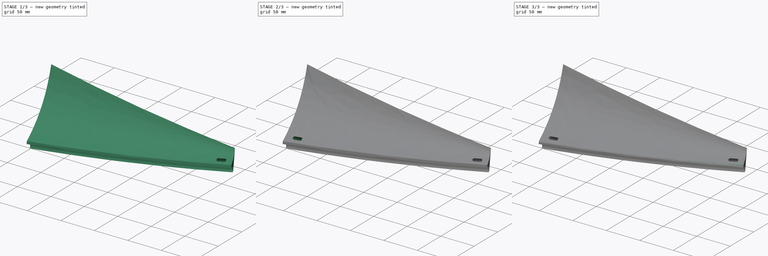
[diagram: build sequence overview — one tinted view per stage of 3, left to right]
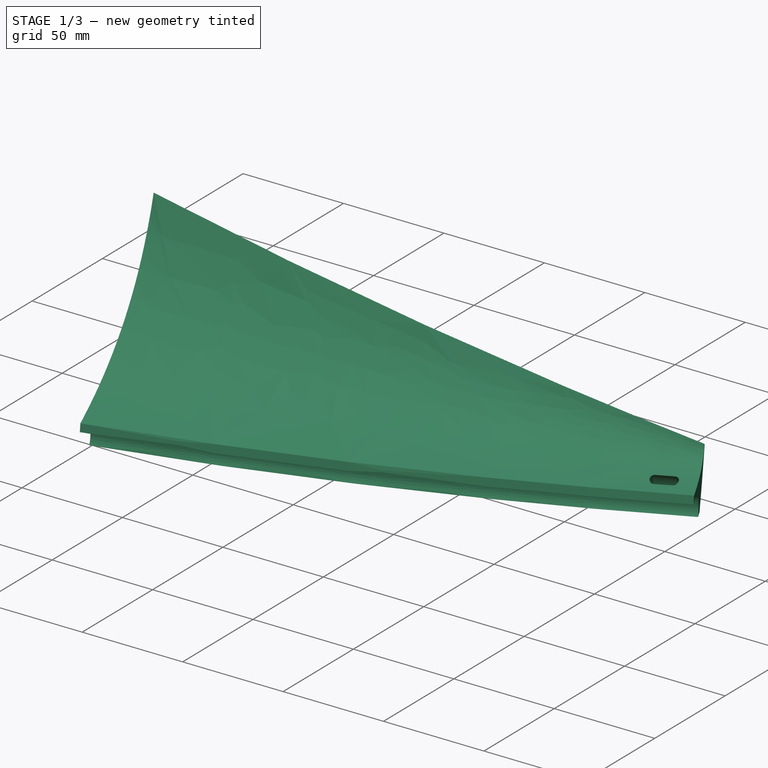
[diagram: stage 1 of 3 — iso view after this stage's code; geometry added in this stage tinted green]
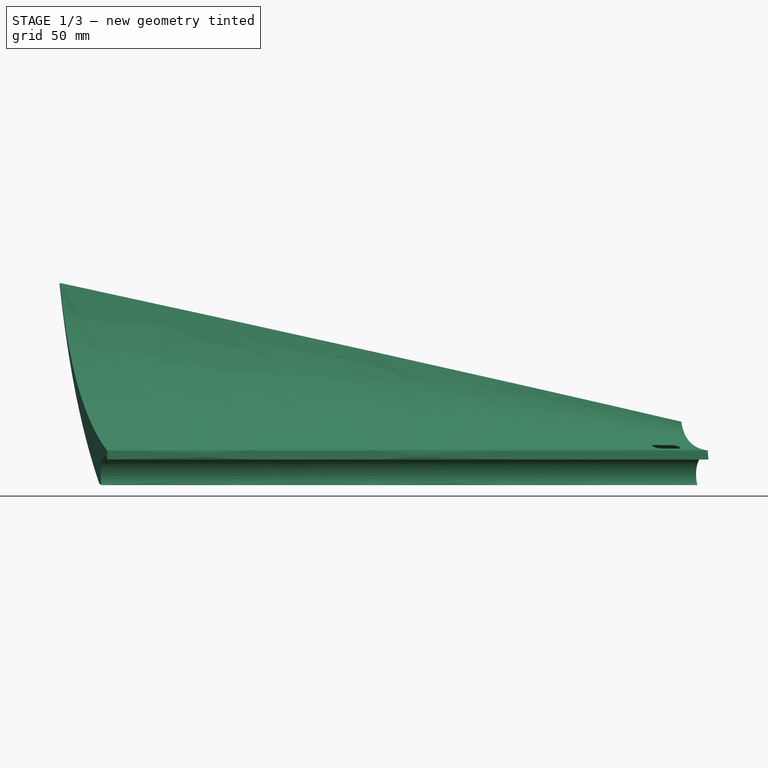
[diagram: stage 1 of 3 — front view after this stage's code; geometry added in this stage tinted green]
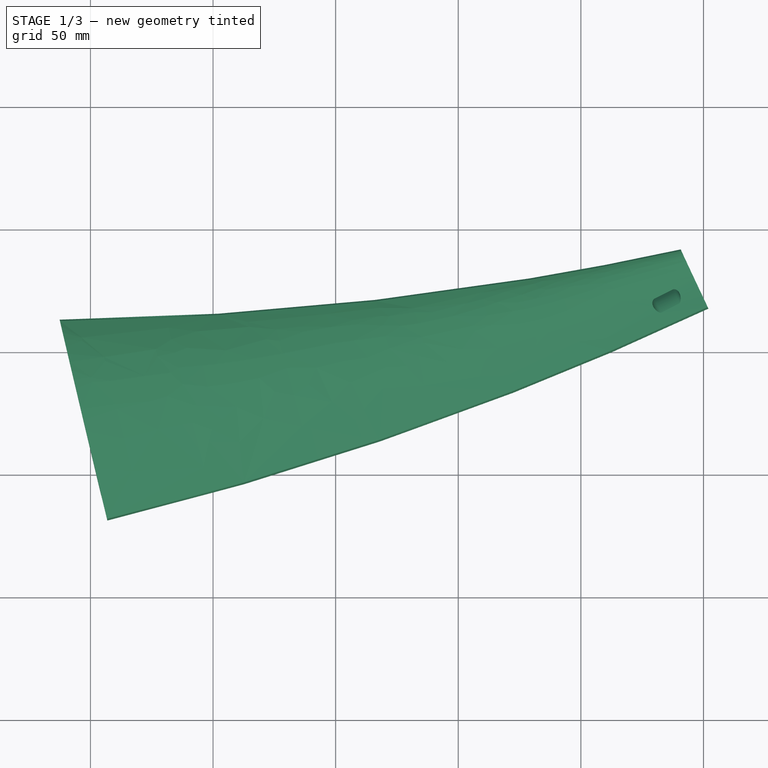
[diagram: stage 1 of 3 — top view after this stage's code; geometry added in this stage tinted green]
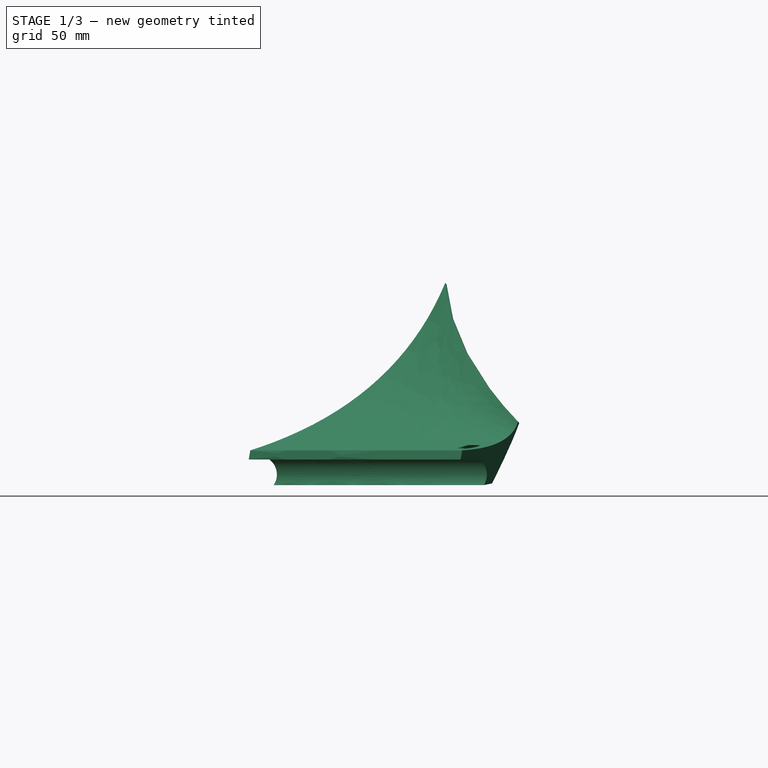
[diagram: stage 1 of 3 — right view after this stage's code; geometry added in this stage tinted green]
FCSTD DOCUMENT  (FreeCAD 0.22R38314 (Git))
Label: Radial _Airfoil_Lower
License: All rights reserved
LicenseURL: https://en.wikipedia.org/wiki/All_rights_reserved
objects: Sketcher::SketchObject×5, PartDesign::Plane×4, PartDesign::SubtractivePipe×2, PartDesign::Fillet×2, PartDesign::AdditivePipe×1, PartDesign::Body×1
note: 25 computed .brp shape members not serialized (recipe doc carries the construction recipe); baked Part::Feature solids carry a one-line shape summary decoded from their .brp

FEATURE [Sketcher::SketchObject] Sketch  label="Radial Guide"
  AttachmentSupport = -> [XY_Plane]
  FullyConstrained = true
  MapMode = 5
  sketch-geometry (6):
    g0: Circle CenterX=0 CenterY=0 CenterZ=0 NormalX=0 NormalY=0 NormalZ=1 AngleXU=0 Radius=8
    g1: Circle CenterX=616 CenterY=155 CenterZ=0 NormalX=0 NormalY=0 NormalZ=1 AngleXU=0 Radius=10
    g2: GeomPoint X=550.157 Y=121.576 Z=0
    g3: ArcOfCircle CenterX=8 CenterY=1269.64 CenterZ=0 NormalX=0 NormalY=0 NormalZ=1 AngleXU=0 Radius=1269.64 StartAngle=4.71239 EndAngle=4.94923
    g4: ArcOfCircle CenterX=8 CenterY=1269.64 CenterZ=0 NormalX=0 NormalY=0 NormalZ=1 AngleXU=0 Radius=1269.64 StartAngle=4.94923 EndAngle=5.15358
    g5: ArcOfCircle CenterX=8 CenterY=1269.64 CenterZ=0 NormalX=0 NormalY=0 NormalZ=1 AngleXU=0 Radius=1269.64 StartAngle=5.15358 EndAngle=5.20387
  constraints (17):
    c: Diameter(g0) = 16
    c: Coincident(g0,g-1)
    c: Diameter(g1) = 20
    c: DistanceX(g0,g1) = 616
    c: DistanceY(g0,g1) = 155
    c: PointOnObject(g3,g0)
    c: PointOnObject(g5,g1)
    c: PointOnObject(g3,g-1)
    c: Distance(g3,g3) = 300  'Profile_Inside'
    c: Coincident(g3,g4)
    c: Coincident(g3,g4)
    c: Perpendicular(g0,g3,g3) = 4.71239
    c: Coincident(g4,g5)
    c: Coincident(g4,g5)
    c: Perpendicular(g1,g5,g5) = 1.5708
    c: Coincident(g4,g2)
    c: Distance(g3,g2) = 259
FEATURE [PartDesign::Plane] DatumPlane  label="InnerProfileDatum"
  AttachmentSupport = -> [Sketch]
  Length = 365.766
  MapMode = 7
  Placement = pos=(305.899,35.4431,0) rot=(0.668178,-0.526088,-0.526088;1.9635rad)
  ResizeMode = 0
  Width = 139.972
FEATURE [Sketcher::SketchObject] Sketch001  label="InnerProfileSketch"
  AttachmentSupport = -> [DatumPlane]
  FullyConstrained = true
  MapMode = 5
  Placement = pos=(305.899,35.4431,0) rot=(0.668178,-0.526088,-0.526088;1.9635rad)
  sketch-geometry (25):
    g0: Circle CenterX=0 CenterY=0 CenterZ=0 NormalX=0 NormalY=0 NormalZ=1 AngleXU=0 Radius=7.5
    g1: ArcOfCircle CenterX=0 CenterY=0 CenterZ=0 NormalX=0 NormalY=0 NormalZ=1 AngleXU=0 Radius=7.5 StartAngle=0.959931 EndAngle=3.75246
    g2: LineSegment StartX=-5.3033 StartY=5.3033 StartZ=0 EndX=-7.42462 EndY=7.42462 EndZ=0
    g3: LineSegment StartX=-7.42462 StartY=7.42462 StartZ=0 EndX=-78.1353 EndY=78.1353 EndZ=0
    g4: LineSegment StartX=-42.78 StartY=42.78 StartZ=0 EndX=-56.9221 EndY=28.6378 EndZ=0
    g5: LineSegment StartX=6.02255 StartY=8.6011 StartZ=0 EndX=4.30182 EndY=6.14364 EndZ=0
    g6: LineSegment StartX=-6.14364 StartY=-4.30182 StartZ=0 EndX=-8.6011 EndY=-6.02255 EndZ=0
    g7: LineSegment StartX=4.30182 StartY=6.14364 StartZ=0 EndX=3.64908 EndY=9.84552 EndZ=0
    g8: LineSegment StartX=-6.14364 StartY=-4.30182 StartZ=0 EndX=-9.84552 EndY=-3.64908 EndZ=0
    g9: ArcOfCircle CenterX=0 CenterY=0 CenterZ=0 NormalX=0 NormalY=0 NormalZ=1 AngleXU=0 Radius=10.5 StartAngle=0.959931 EndAngle=1.21586
    g10: ArcOfCircle CenterX=0 CenterY=0 CenterZ=0 NormalX=0 NormalY=0 NormalZ=1 AngleXU=0 Radius=10.5 StartAngle=1.21586 EndAngle=3.49653
    g11: ArcOfCircle CenterX=0 CenterY=0 CenterZ=0 NormalX=0 NormalY=0 NormalZ=1 AngleXU=0 Radius=10.5 StartAngle=3.49653 EndAngle=3.75246
    g12: LineSegment StartX=-78.1353 StartY=78.1353 StartZ=0 EndX=-78.701 EndY=77.5696 EndZ=0
    g13: Circle CenterX=3.64908 CenterY=9.84552 CenterZ=0 NormalX=0 NormalY=0 NormalZ=1 AngleXU=0 Radius=1
    g14: Circle CenterX=-56.9221 CenterY=28.6378 CenterZ=0 NormalX=0 NormalY=0 NormalZ=1 AngleXU=0 Radius=1
    g15: Circle CenterX=-78.1353 CenterY=78.1353 CenterZ=0 NormalX=0 NormalY=0 NormalZ=1 AngleXU=0 Radius=1
    g16: BSplineCurve PolesCount=3 KnotsCount=2 Degree=2 IsPeriodic=0
    g17: GeomPoint X=3.64908 Y=9.84552 Z=0
    g18: GeomPoint X=-78.1353 Y=78.1353 Z=0
    g19: Circle CenterX=-9.84552 CenterY=-3.64908 CenterZ=0 NormalX=0 NormalY=0 NormalZ=1 AngleXU=0 Radius=1
    g20: Circle CenterX=-56.9221 CenterY=28.6378 CenterZ=0 NormalX=0 NormalY=0 NormalZ=1 AngleXU=0 Radius=1
    g21: Circle CenterX=-78.701 CenterY=77.5696 CenterZ=0 NormalX=0 NormalY=0 NormalZ=1 AngleXU=0 Radius=1
    g22: BSplineCurve PolesCount=3 KnotsCount=2 Degree=2 IsPeriodic=0
    g23: GeomPoint X=-9.84552 Y=-3.64908 Z=0
    g24: GeomPoint X=-78.701 Y=77.5696 Z=0
  constraints (59):
    c: Coincident(g0,g-1)
    c: Diameter(g0) = 15
    c: Coincident(g1,g0)
    c: PointOnObject(g1,g0)
    c: Angle(g1) = 2.79253
    c: Coincident(g9,g0)
    c: PointOnObject(g2,g1)
    c: Perpendicular(g1,g2)
    c: Angle(g-2,g2) = 0.785398
    c: Coincident(g3,g2)
    c: Parallel(g2,g3)
    c: Distance(g3,g3) = 100
    c: Symmetric(g3,g3,g4)
    c: Perpendicular(g3,g4)
    c: Distance(g4,g4) = 20
    c: Coincident(g5,g9)
    c: Coincident(g5,g1)
    c: Coincident(g6,g1)
    c: Coincident(g6,g11)
    c: Perpendicular(g1,g6)
    c: Perpendicular(g1,g5)
    c: Angle(g5,g2) = 1.39626
    c: Distance(g5,g5) = 3
    c: Coincident(g7,g1)
    c: Coincident(g8,g1)
    c: Angle(g8,g6) = 0.785398
    c: Angle(g5,g7) = 0.785398
    c: Coincident(g9,g10)
    c: Coincident(g9,g10)
    c: Coincident(g10,g11)
    c: Coincident(g10,g11)
    c: PointOnObject(g2,g10)
    c: Coincident(g10,g8)
    c: Coincident(g9,g7)
    c: Coincident(g12,g3)
    c: Perpendicular(g3,g12)
    c: Distance(g12,g12) = 0.8
    c: Weight(g13) = 1
    c: Equal(g13,g14)
    c: Equal(g13,g15)
    c: InternalAlignment(g13,g16)
    c: InternalAlignment(g14,g16)
    c: InternalAlignment(g15,g16)
    c: InternalAlignment(g17,g16)
    c: InternalAlignment(g18,g16)
    c: Coincident(g13,g7)
    c: Coincident(g14,g4)
    c: Coincident(g15,g3)
    c: Weight(g19) = 1
    c: Equal(g19,g20)
    c: Equal(g19,g21)
    c: InternalAlignment(g19,g22)
    c: InternalAlignment(g20,g22)
    c: InternalAlignment(g21,g22)
    c: InternalAlignment(g23,g22)
    c: InternalAlignment(g24,g22)
    c: Coincident(g19,g8)
    c: Coincident(g20,g4)
    c: Coincident(g21,g12)
FEATURE [PartDesign::Plane] DatumPlane001  label="OuterProfileDatum"
  AttachmentSupport = -> [Sketch]
  Length = 469.731
  MapMode = 7
  Placement = pos=(550.157,121.576,0) rot=(0.744725,-0.471903,-0.471903;1.86136rad)
  ResizeMode = 0
  Width = 145.142
FEATURE [Sketcher::SketchObject] Sketch002  label="OuterProfileSketch"
  AttachmentSupport = -> [DatumPlane001]
  FullyConstrained = true
  MapMode = 5
  Placement = pos=(550.157,121.576,0) rot=(0.744725,-0.471903,-0.471903;1.86136rad)
  sketch-geometry (25):
    g0: Circle CenterX=0 CenterY=0 CenterZ=0 NormalX=0 NormalY=0 NormalZ=1 AngleXU=0 Radius=7.5
    g1: ArcOfCircle CenterX=0 CenterY=0 CenterZ=0 NormalX=0 NormalY=0 NormalZ=1 AngleXU=0 Radius=7.5 StartAngle=0.959931 EndAngle=3.75246
    g2: LineSegment StartX=-5.3033 StartY=5.3033 StartZ=0 EndX=-7.42462 EndY=7.42462 EndZ=0
    g3: LineSegment StartX=-7.42462 StartY=7.42462 StartZ=0 EndX=-21.5668 EndY=21.5668 EndZ=0
    g4: LineSegment StartX=-14.4957 StartY=14.4957 StartZ=0 EndX=-18.0312 EndY=10.9602 EndZ=0
    g5: LineSegment StartX=6.02255 StartY=8.6011 StartZ=0 EndX=4.30182 EndY=6.14364 EndZ=0
    g6: LineSegment StartX=-6.14364 StartY=-4.30183 StartZ=0 EndX=-8.60109 EndY=-6.02256 EndZ=0
    g7: LineSegment StartX=4.30182 StartY=6.14364 StartZ=0 EndX=3.64908 EndY=9.84552 EndZ=0
    g8: LineSegment StartX=-6.14364 StartY=-4.30183 StartZ=0 EndX=-9.84551 EndY=-3.64909 EndZ=0
    g9: ArcOfCircle CenterX=0 CenterY=0 CenterZ=0 NormalX=0 NormalY=0 NormalZ=1 AngleXU=0 Radius=10.5 StartAngle=0.959931 EndAngle=1.21586
    g10: ArcOfCircle CenterX=0 CenterY=0 CenterZ=0 NormalX=0 NormalY=0 NormalZ=1 AngleXU=0 Radius=10.5 StartAngle=1.21586 EndAngle=3.49653
    g11: ArcOfCircle CenterX=0 CenterY=0 CenterZ=0 NormalX=0 NormalY=0 NormalZ=1 AngleXU=0 Radius=10.5 StartAngle=3.49653 EndAngle=3.75246
    g12: LineSegment StartX=-21.5668 StartY=21.5668 StartZ=0 EndX=-22.1324 EndY=21.0011 EndZ=0
    g13: Circle CenterX=3.64908 CenterY=9.84552 CenterZ=0 NormalX=0 NormalY=0 NormalZ=1 AngleXU=0 Radius=1
    g14: Circle CenterX=-18.0312 CenterY=10.9602 CenterZ=0 NormalX=0 NormalY=0 NormalZ=1 AngleXU=0 Radius=1
    g15: Circle CenterX=-21.5668 CenterY=21.5668 CenterZ=0 NormalX=0 NormalY=0 NormalZ=1 AngleXU=0 Radius=1
    g16: BSplineCurve PolesCount=3 KnotsCount=2 Degree=2 IsPeriodic=0
    g17: GeomPoint X=3.64908 Y=9.84552 Z=0
    g18: GeomPoint X=-21.5668 Y=21.5668 Z=0
    g19: Circle CenterX=-9.84551 CenterY=-3.64909 CenterZ=0 NormalX=0 NormalY=0 NormalZ=1 AngleXU=0 Radius=1
    g20: Circle CenterX=-18.0312 CenterY=10.9602 CenterZ=0 NormalX=0 NormalY=0 NormalZ=1 AngleXU=0 Radius=1
    g21: Circle CenterX=-22.1324 CenterY=21.0011 CenterZ=0 NormalX=0 NormalY=0 NormalZ=1 AngleXU=0 Radius=1
    g22: BSplineCurve PolesCount=3 KnotsCount=2 Degree=2 IsPeriodic=0
    g23: GeomPoint X=-9.84551 Y=-3.64909 Z=0
    g24: GeomPoint X=-22.1324 Y=21.0011 Z=0
  constraints (59):
    c: Coincident(g0,g-1)
    c: Diameter(g0) = 15
    c: Coincident(g1,g0)
    c: PointOnObject(g1,g0)
    c: Angle(g1) = 2.79253
    c: Coincident(g9,g0)
    c: PointOnObject(g2,g1)
    c: Perpendicular(g1,g2)
    c: Angle(g-2,g2) = 0.785398
    c: Coincident(g3,g2)
    c: Parallel(g2,g3)
    c: Distance(g3,g3) = 20
    c: Symmetric(g3,g3,g4)
    c: Perpendicular(g3,g4)
    c: Distance(g4,g4) = 5
    c: Coincident(g5,g9)
    c: Coincident(g5,g1)
    c: Coincident(g6,g1)
    c: Coincident(g6,g11)
    c: Perpendicular(g1,g6)
    c: Perpendicular(g1,g5)
    c: Angle(g5,g2) = 1.39626
    c: Distance(g5,g5) = 3
    c: Coincident(g7,g1)
    c: Coincident(g8,g1)
    c: Angle(g8,g6) = 0.785398
    c: Angle(g5,g7) = 0.785398
    c: Coincident(g9,g10)
    c: Coincident(g9,g10)
    c: Coincident(g10,g11)
    c: Coincident(g10,g11)
    c: PointOnObject(g2,g10)
    c: Coincident(g10,g8)
    c: Coincident(g9,g7)
    c: Coincident(g12,g3)
    c: Perpendicular(g3,g12)
    c: Distance(g12,g12) = 0.8
    c: Weight(g13) = 1
    c: Equal(g13,g14)
    c: Equal(g13,g15)
    c: InternalAlignment(g13,g16)
    c: InternalAlignment(g14,g16)
    c: InternalAlignment(g15,g16)
    c: InternalAlignment(g17,g16)
    c: InternalAlignment(g18,g16)
    c: Coincident(g13,g7)
    c: Coincident(g14,g4)
    c: Coincident(g15,g3)
    c: Weight(g19) = 1
    c: Equal(g19,g20)
    c: Equal(g19,g21)
    c: InternalAlignment(g19,g22)
    c: InternalAlignment(g20,g22)
    c: InternalAlignment(g21,g22)
    c: InternalAlignment(g23,g22)
    c: InternalAlignment(g24,g22)
    c: Coincident(g19,g8)
    c: Coincident(g20,g4)
    c: Coincident(g21,g12)
FEATURE [PartDesign::AdditivePipe] AdditivePipe
  AuxilleryCurvelinear = true
  AuxillerySpineTangent = false
  Binormal = (0,0,0)
  Mode = 1
  Placement = pos=(305.899,35.4431,0) rot=(0.668178,-0.526088,-0.526088;1.9635rad)
  Profile = -> Sketch001
  Refine = true
  Sections = -> [Sketch002]
  Spine = -> Sketch [Edge3]
  SpineTangent = false
  Suppressed = false
  Transformation = 1
  Transition = 0
FEATURE [PartDesign::Plane] DatumPlane002  label="OuterZiplocDatum"
  AttachmentOffset = pos=(0,14,0) rot=(-0.583952,-0.563916,-0.583952;2.11466rad)
  AttachmentSupport = -> [Sketch002,AdditivePipe]
  Length = 698.629
  MapMode = 45
  Placement = pos=(551.157,119.46,0.952678) rot=(0.968363,0.21715,0.12296;2.13847rad)
  ResizeMode = 0
  Width = 395.355
FEATURE [Sketcher::SketchObject] Sketch004  label="OuterZiplocSketch"
  AttachmentSupport = -> [DatumPlane002]
  ExternalGeometry = -> [AdditivePipe]
  FullyConstrained = true
  MapMode = 5
  Placement = pos=(551.157,119.46,0.952678) rot=(0.968363,0.21715,0.12296;2.13847rad)
  sketch-geometry (5):
    g0: ArcOfCircle CenterX=-18 CenterY=10.7776 CenterZ=0 NormalX=0 NormalY=0 NormalZ=1 AngleXU=0 Radius=2 StartAngle=1.5708 EndAngle=4.71239
    g1: ArcOfCircle CenterX=-10 CenterY=10.7776 CenterZ=0 NormalX=0 NormalY=0 NormalZ=1 AngleXU=0 Radius=2 StartAngle=4.71239 EndAngle=7.85398
    g2: LineSegment StartX=-18 StartY=12.7776 StartZ=0 EndX=-10 EndY=12.7776 EndZ=0
    g3: LineSegment StartX=-18 StartY=8.77762 StartZ=0 EndX=-10 EndY=8.77762 EndZ=0
    g4: LineSegment StartX=-10 StartY=8.27762 StartZ=0 EndX=-10 EndY=8.77762 EndZ=0
  constraints (13):
    c: Tangent(g0,g2) = 1.5708
    c: Tangent(g0,g3) = -1.5708
    c: Tangent(g1,g2) = 1.5708
    c: Tangent(g1,g3) = -1.5708
    c: Equal(g0,g1)
    c: Horizontal(g2)
    c: DistanceX(g0,g1) = 8
    c: Distance(g1,g1) = 4
    c: PointOnObject(g4,g-3)
    c: Coincident(g4,g1)
    c: Perpendicular(g4,g3)
    c: DistanceX(g4,g-3) = 10
    c: DistanceY(g4,g4) = 0.5
FEATURE [PartDesign::SubtractivePipe] SubtractivePipe  label="OuterZiploc"
  AuxilleryCurvelinear = true
  AuxillerySpineTangent = false
  BaseFeature = -> AdditivePipe
  Binormal = (0,0,0)
  Mode = 0
  Placement = pos=(305.899,35.4431,0) rot=(0.668178,-0.526088,-0.526088;1.9635rad)
  Profile = -> Sketch004
  Refine = true
  Spine = -> AdditivePipe [Edge11]
  SpineTangent = false
  Suppressed = false
  Transformation = 0
  Transition = 0
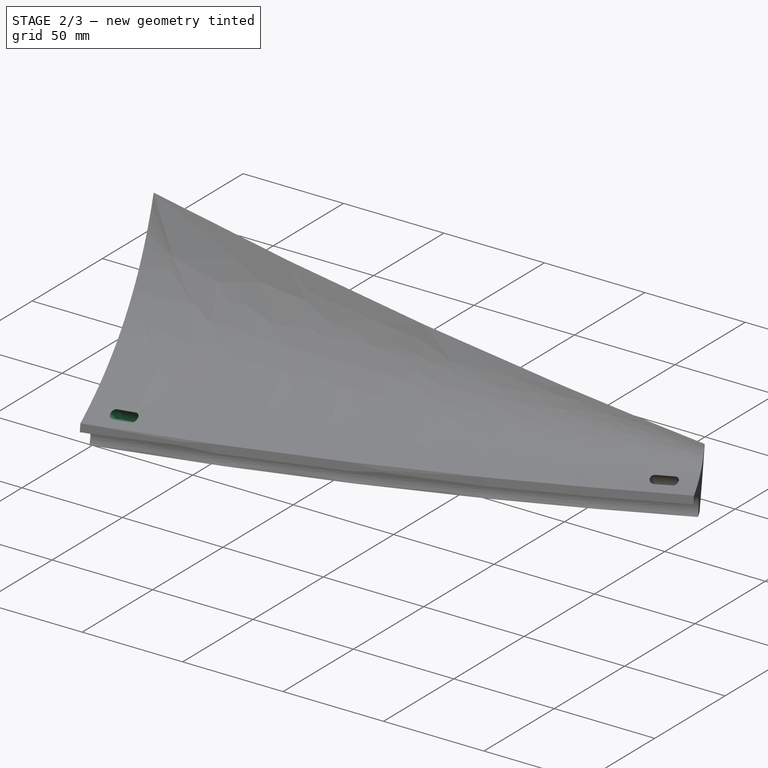
[diagram: stage 2 of 3 — iso view after this stage's code; geometry added in this stage tinted green]
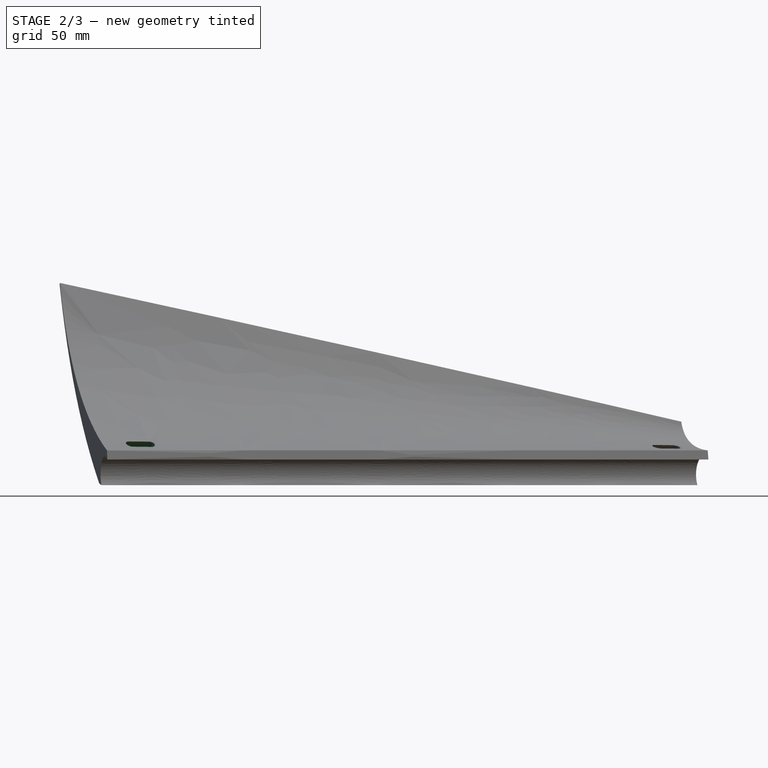
[diagram: stage 2 of 3 — front view after this stage's code; geometry added in this stage tinted green]
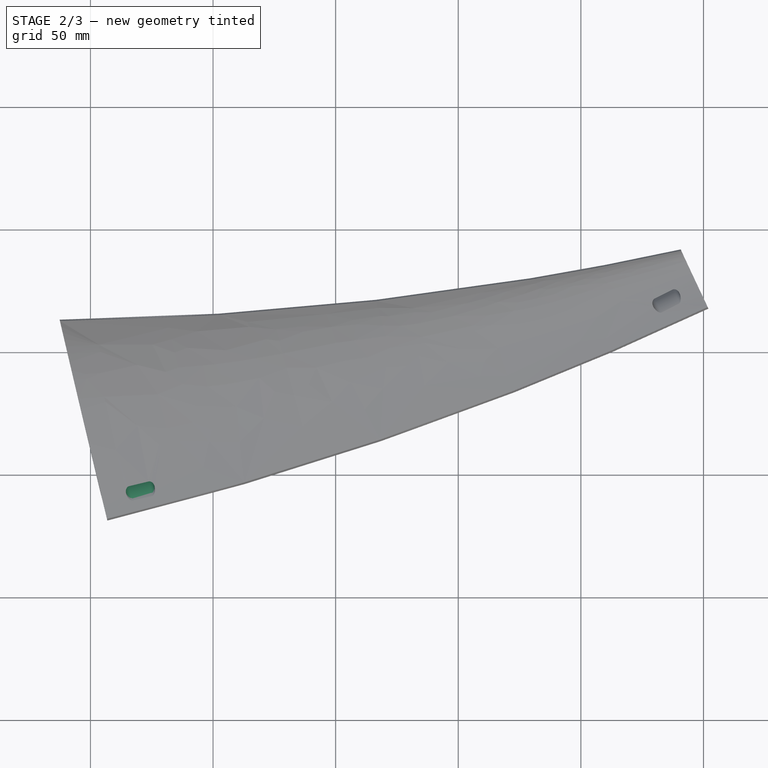
[diagram: stage 2 of 3 — top view after this stage's code; geometry added in this stage tinted green]
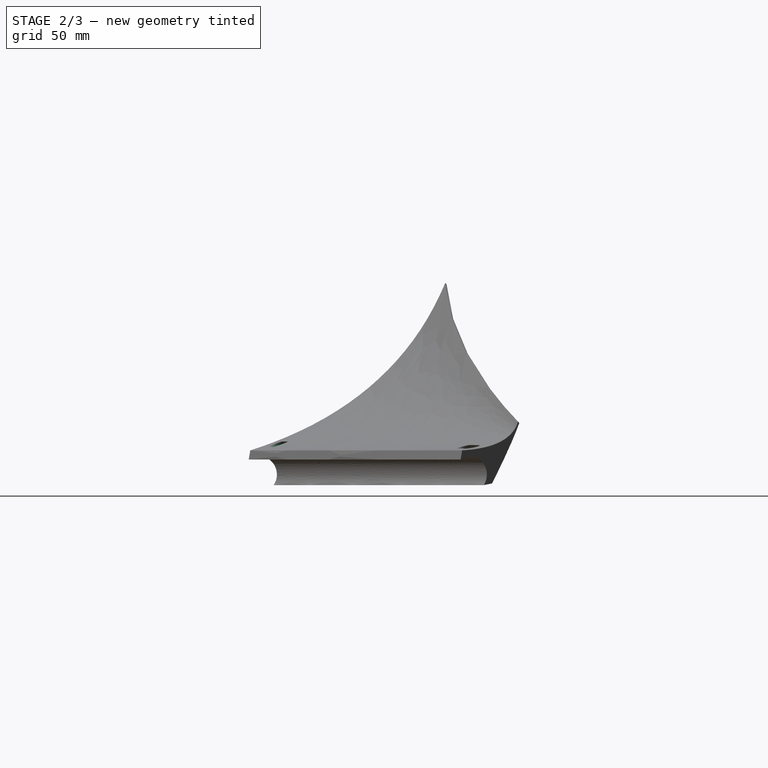
[diagram: stage 2 of 3 — right view after this stage's code; geometry added in this stage tinted green]
FEATURE [PartDesign::Plane] DatumPlane003  label="InnerZilpocDatum"
  AttachmentOffset = pos=(4,0,0) rot=(0,1,0;1.6057rad)
  AttachmentSupport = -> [SubtractivePipe]
  Length = 665.216
  MapMode = 5
  Placement = pos=(306.837,31.5547,4e-16) rot=(0.981817,0.13423,0.13423;1.58915rad)
  ResizeMode = 0
  Width = 153.499
FEATURE [Sketcher::SketchObject] Sketch005  label="InnerZiplocSketch"
  AttachmentSupport = -> [DatumPlane003]
  ExternalGeometry = -> [SubtractivePipe]
  FullyConstrained = true
  MapMode = 5
  Placement = pos=(306.837,31.5547,4e-16) rot=(0.981817,0.13423,0.13423;1.58915rad)
  sketch-geometry (6):
    g0: ArcOfCircle CenterX=12 CenterY=12.8455 CenterZ=0 NormalX=0 NormalY=0 NormalZ=1 AngleXU=0 Radius=2 StartAngle=1.5708 EndAngle=4.71239
    g1: ArcOfCircle CenterX=20 CenterY=12.8455 CenterZ=0 NormalX=0 NormalY=0 NormalZ=1 AngleXU=0 Radius=2 StartAngle=4.71239 EndAngle=7.85398
    g2: LineSegment StartX=12 StartY=14.8455 StartZ=0 EndX=20 EndY=14.8455 EndZ=0
    g3: LineSegment StartX=12 StartY=10.8455 StartZ=0 EndX=20 EndY=10.8455 EndZ=0
    g4: LineSegment StartX=20 StartY=10.8455 StartZ=0 EndX=20 EndY=9.84552 EndZ=0
    g5: LineSegment StartX=12 StartY=10.8455 StartZ=0 EndX=12 EndY=9.84552 EndZ=0
  constraints (16):
    c: Tangent(g0,g2) = 1.5708
    c: Tangent(g0,g3) = -1.5708
    c: Tangent(g1,g2) = 1.5708
    c: Tangent(g1,g3) = -1.5708
    c: Equal(g0,g1)
    c: DistanceX(g0,g1) = 8
    c: Distance(g0,g0) = 4
    c: Distance(g0,g-2) = 10
    c: Coincident(g4,g1)
    c: PointOnObject(g4,g-4)
    c: Vertical(g4)
    c: DistanceY(g4,g4) = 1
    c: Coincident(g5,g0)
    c: PointOnObject(g5,g-4)
    c: Vertical(g5)
    c: DistanceY(g5,g5) = 1
FEATURE [PartDesign::SubtractivePipe] SubtractivePipe001  label="InnerZiploc"
  AuxilleryCurvelinear = true
  AuxillerySpineTangent = false
  BaseFeature = -> SubtractivePipe
  Binormal = (0,0,0)
  Mode = 0
  Placement = pos=(305.899,35.4431,0) rot=(0.668178,-0.526088,-0.526088;1.9635rad)
  Profile = -> Sketch005
  Refine = true
  Spine = -> SubtractivePipe [Edge3]
  SpineTangent = false
  Suppressed = false
  Transformation = 0
  Transition = 0
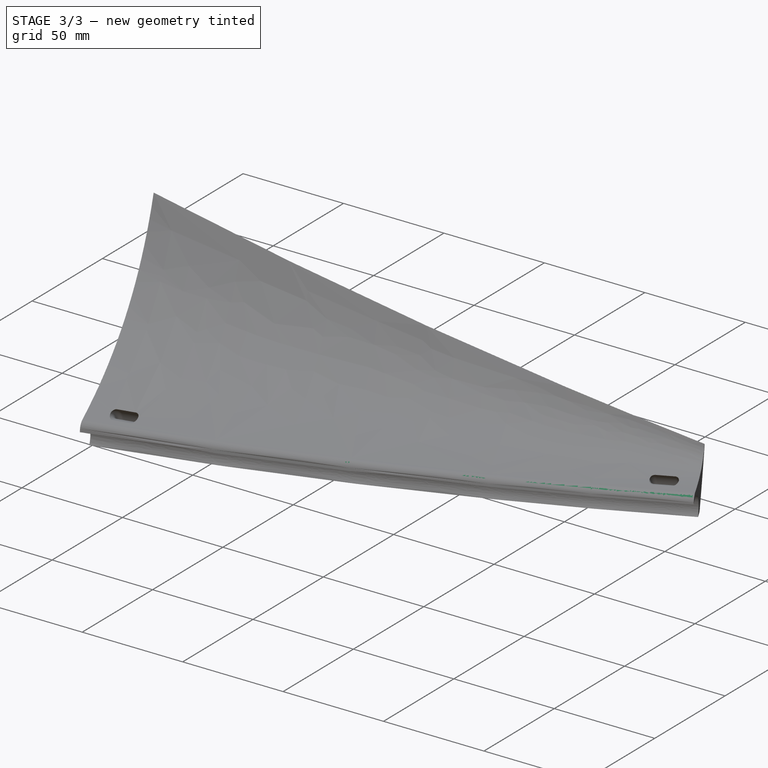
[diagram: stage 3 of 3 — iso view after this stage's code; geometry added in this stage tinted green]
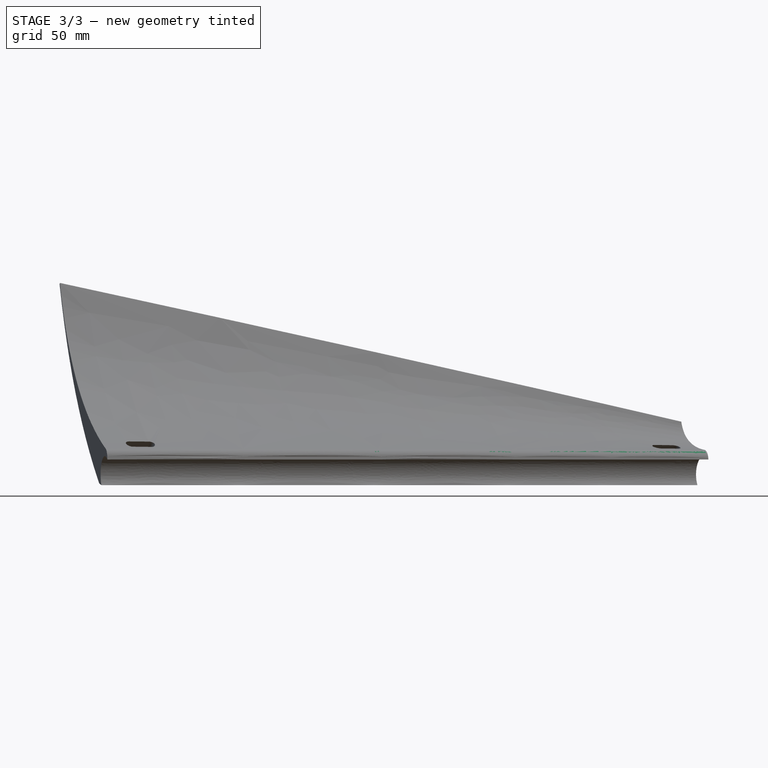
[diagram: stage 3 of 3 — front view after this stage's code; geometry added in this stage tinted green]
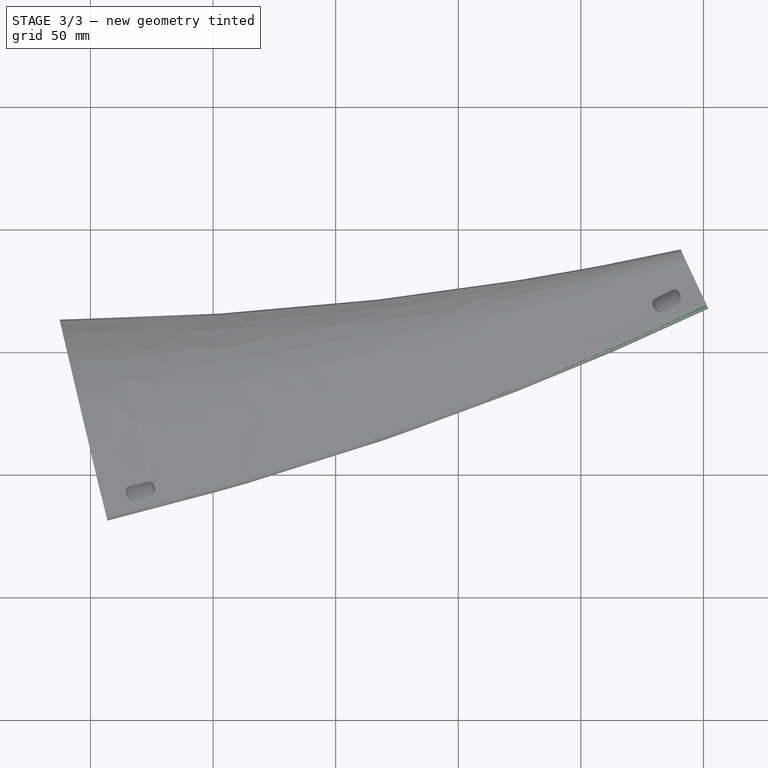
[diagram: stage 3 of 3 — top view after this stage's code; geometry added in this stage tinted green]
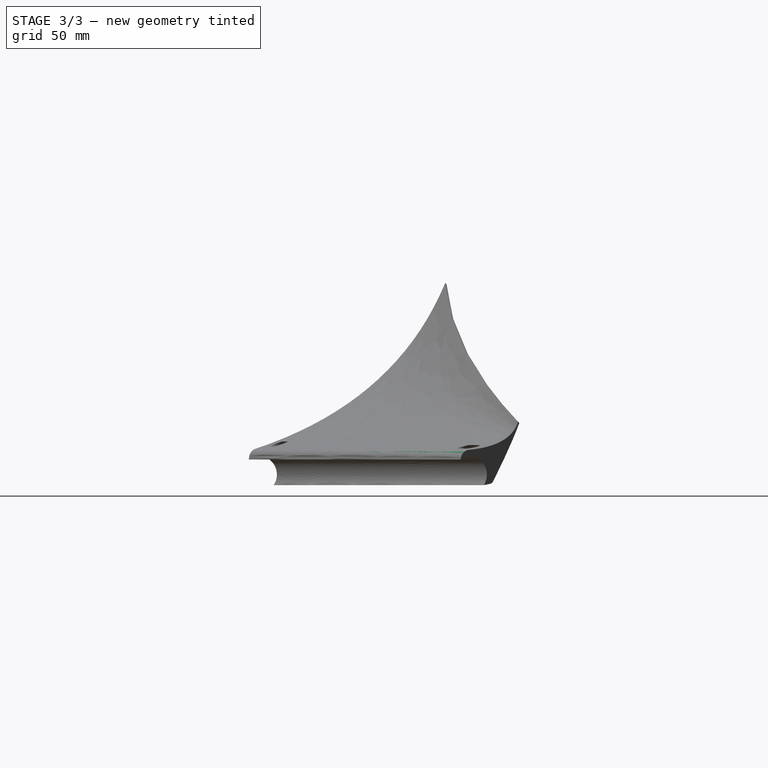
[diagram: stage 3 of 3 — right view after this stage's code; geometry added in this stage tinted green]
FEATURE [PartDesign::Fillet] Fillet  label="FilletUpper"
  Base = -> SubtractivePipe001 [Edge9]
  BaseFeature = -> SubtractivePipe001
  Placement = pos=(305.899,35.4431,0) rot=(0.668178,-0.526088,-0.526088;1.9635rad)
  Radius = 4
  Refine = true
  SupportTransform = false
  Suppressed = false
  UseAllEdges = false
FEATURE [PartDesign::Fillet] Fillet001  label="FilletLower"
  Base = -> Fillet [Edge25]
  BaseFeature = -> Fillet
  Placement = pos=(305.899,35.4431,0) rot=(0.668178,-0.526088,-0.526088;1.9635rad)
  Radius = 2
  Refine = true
  SupportTransform = false
  Suppressed = false
  UseAllEdges = false
FEATURE [PartDesign::Body] Body
  AllowCompound = false
  Group = -> [Sketch,DatumPlane,Sketch001,DatumPlane001,Sketch002,AdditivePipe,DatumPlane002,Sketch004,SubtractivePipe,DatumPlane003,Sketch005,SubtractivePipe001,Fillet,Fillet001]
  Origin = -> Origin
  Tip = -> Fillet001
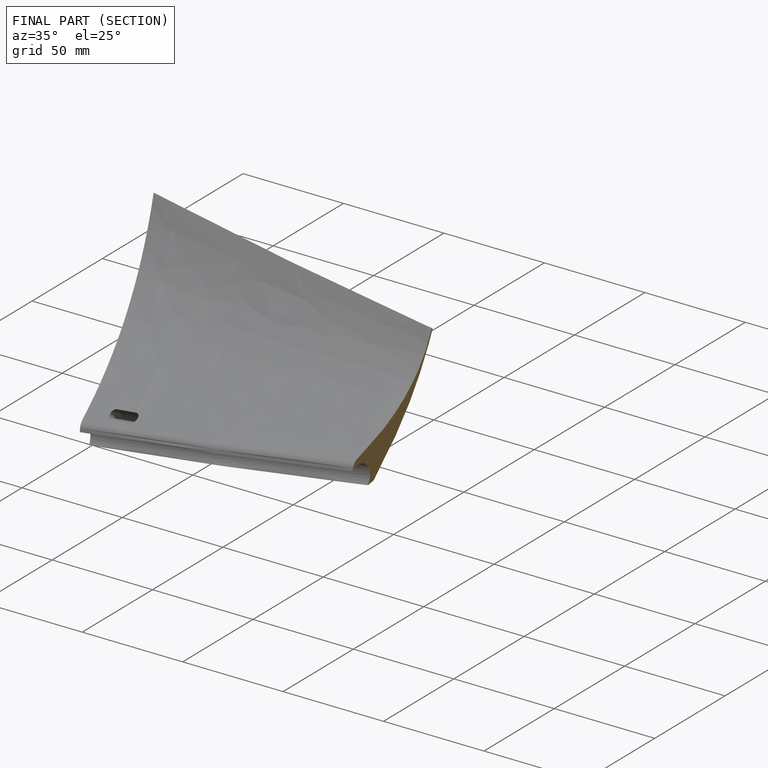
[diagram: finished part — half-section view (interior)]
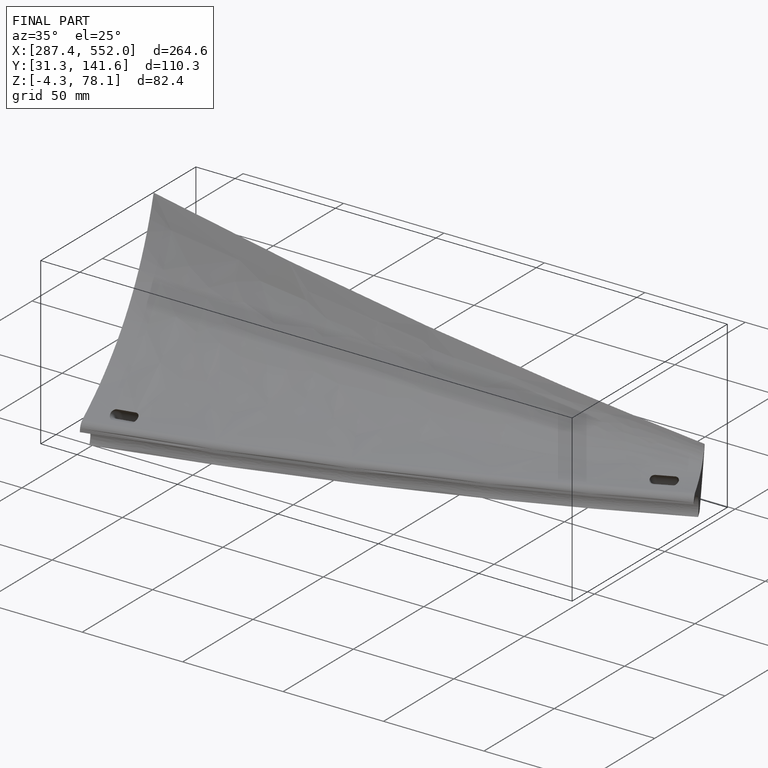
[diagram: finished part — iso view with bounding-box wireframe]
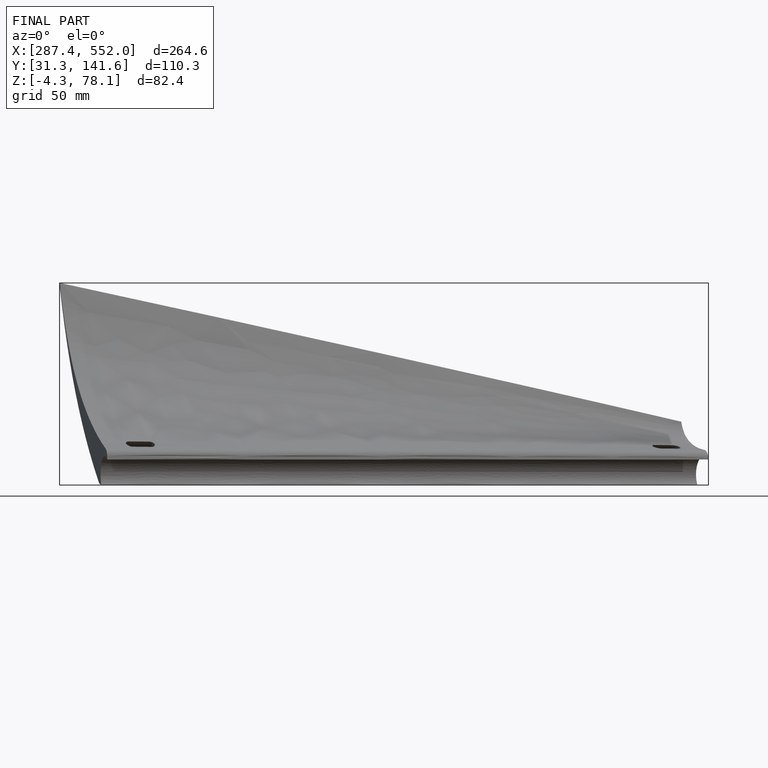
[diagram: finished part — front view with bounding-box wireframe]
